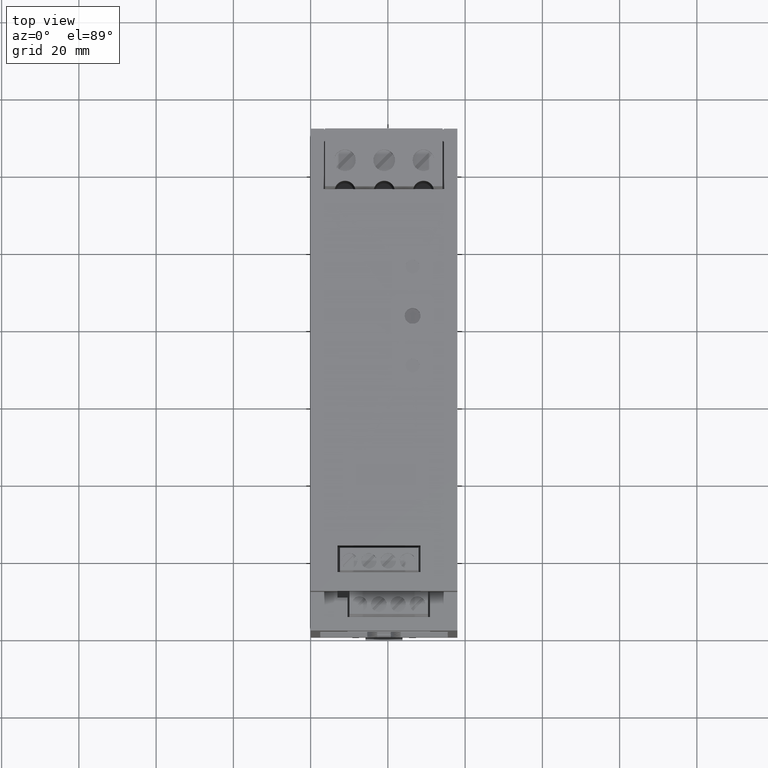
[diagram: clean part render]
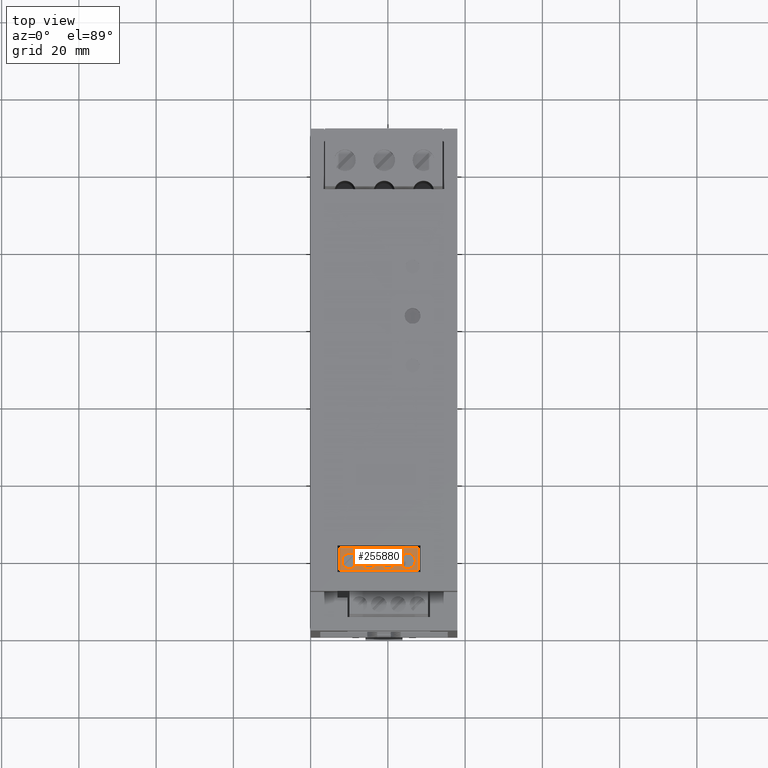
[diagram: same view with one face highlighted and labeled with its STEP entity id]
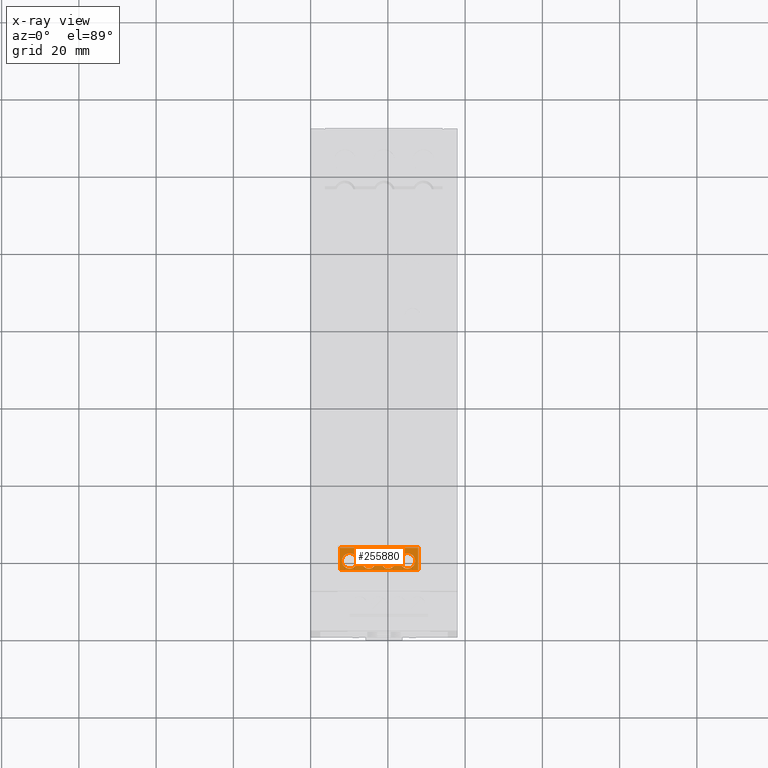
[diagram: x-ray of the same camera — body ghosted, the highlighted face saturated]
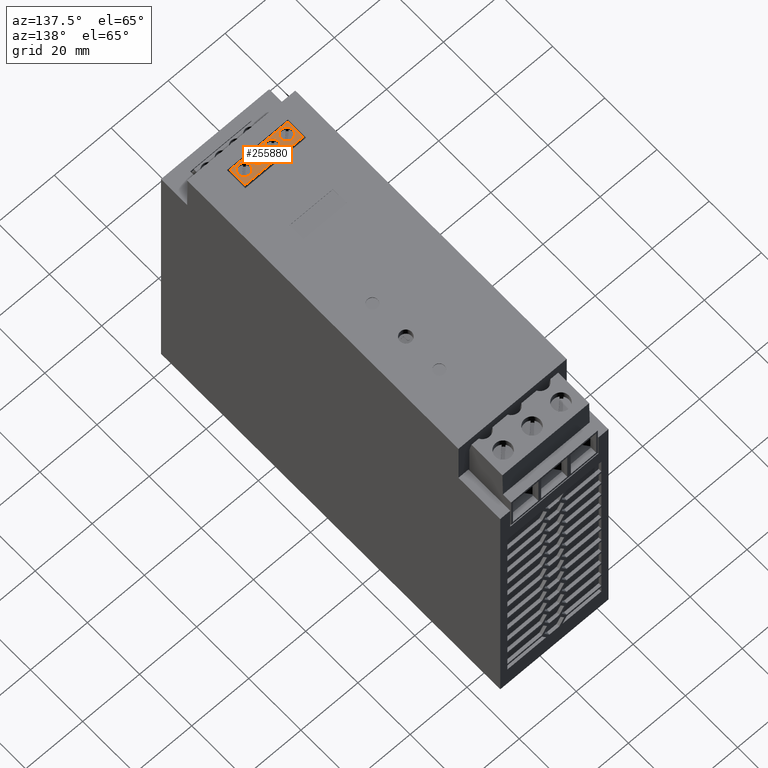
[diagram: same view with one face highlighted and labeled with its STEP entity id]
A machine part, top view. The second image highlights one B-rep face of the part: STEP entity #255880.
The next image is the same camera in x-ray: the body ghosted, the highlighted face saturated — about 0% of this face is hidden behind the body in this view.
A second angle (auxiliary view) of the same face is appended — the face is thin or edge-on in the first view.
In plain terms, the highlighted planar face has unit normal (-0, 0, 1).
Its self-contained STEP definition (entity closure, byte-faithful):
#234450=CARTESIAN_POINT('',(21.0898566145489,122.199985521229,
111.344533873885));
#234460=VERTEX_POINT('',#234450);
#234860=CARTESIAN_POINT('',(17.0898566149269,122.199985521228,
111.344588861166));
#234870=VERTEX_POINT('',#234860);
#234900=CARTESIAN_POINT('',(19.0898566147379,122.199985521228,
111.344561367526));
#234910=DIRECTION('',(-2.57815653320528E-20,-1.,-3.46944695195361E-18));
#234920=DIRECTION('',(0.999999999905512,-2.57338714660515E-20,
-1.37468202355246E-5));
#234930=AXIS2_PLACEMENT_3D('',#234900,#234910,#234920);
#234940=CIRCLE('',#234930,1.99999999999997);
#234950=EDGE_CURVE('',#234870,#234460,#234940,.T.);
#247180=CARTESIAN_POINT('',(6.54988960829135,122.199985521229,
113.744733752425));
#247190=VERTEX_POINT('',#247180);
#247670=CARTESIAN_POINT('',(6.54980964108919,122.199985521229,
107.927591985858));
#247680=VERTEX_POINT('',#247670);
#247710=CARTESIAN_POINT('',(6.549716831829,122.199985521228,
101.176266327476));
#247720=DIRECTION('',(-1.37468202355246E-5,3.46944730604034E-18,
-0.999999999905512));
#247730=VECTOR('',#247720,1.);
#247740=LINE('',#247710,#247730);
#247750=EDGE_CURVE('',#247190,#247680,#247740,.T.);
#255080=CARTESIAN_POINT('',(6.04186136793511,122.199985521228,
113.890199520389));
#255090=DIRECTION('',(2.57815653320528E-20,1.,3.46944695195361E-18));
#255100=DIRECTION('',(0.999999999905512,-2.57338714660515E-20,
-1.37468202355246E-5));
#255110=AXIS2_PLACEMENT_3D('',#255080,#255090,#255100);
#255120=PLANE('',#255110);
#255130=ORIENTED_EDGE('',*,*,#247750,.F.);
#255140=CARTESIAN_POINT('',(2.74980964144815,122.199985521228,
107.927644223775));
#255150=DIRECTION('',(-0.999999999905512,2.57338714660515E-20,
1.37468202355246E-5));
#255160=VECTOR('',#255150,1.);
#255170=LINE('',#255140,#255160);
#255180=CARTESIAN_POINT('',(26.8698096391692,122.199985521228,
107.92731265047));
#255190=VERTEX_POINT('',#255180);
#255200=EDGE_CURVE('',#255190,#247680,#255170,.T.);
#255210=ORIENTED_EDGE('',*,*,#255200,.T.);
#255220=CARTESIAN_POINT('',(26.869716829909,122.199985521228,
101.175986992089));
#255230=DIRECTION('',(-1.37468202355246E-5,3.46944730604034E-18,
-0.999999999905512));
#255240=VECTOR('',#255230,1.);
#255250=LINE('',#255220,#255240);
#255260=CARTESIAN_POINT('',(26.8698896063714,122.199985521228,
113.744454417038));
#255270=VERTEX_POINT('',#255260);
#255280=EDGE_CURVE('',#255270,#255190,#255250,.T.);
#255290=ORIENTED_EDGE('',*,*,#255280,.T.);
#255300=CARTESIAN_POINT('',(2.74988960865031,122.199985521228,
113.744785990342));
#255310=DIRECTION('',(0.999999999905512,-2.57338714660515E-20,
-1.37468202355246E-5));
#255320=VECTOR('',#255310,1.);
#255330=LINE('',#255300,#255320);
#255340=EDGE_CURVE('',#247190,#255270,#255330,.T.);
#255350=ORIENTED_EDGE('',*,*,#255340,.T.);
#255360=EDGE_LOOP('',(#255350,#255290,#255210,#255130));
#255370=FACE_OUTER_BOUND('',#255360,.T.);
#255380=EDGE_CURVE('',#234460,#234870,#234940,.T.);
#255390=ORIENTED_EDGE('',*,*,#255380,.T.);
#255400=ORIENTED_EDGE('',*,*,#234950,.T.);
#255410=EDGE_LOOP('',(#255400,#255390));
#255420=FACE_BOUND('',#255410,.T.);
#255430=CARTESIAN_POINT('',(9.08985661568278,122.199985521228,
111.344698835728));
#255440=DIRECTION('',(-2.57815653320528E-20,-1.,-3.46944695195361E-18));
#255450=DIRECTION('',(0.999999999905512,-2.57338714660515E-20,
-1.37468202355246E-5));
#255460=AXIS2_PLACEMENT_3D('',#255430,#255440,#255450);
#255470=CIRCLE('',#255460,1.99999999999999);
#255480=CARTESIAN_POINT('',(11.0898566154938,122.199985521228,
111.344671342088));
#255490=VERTEX_POINT('',#255480);
#255500=CARTESIAN_POINT('',(7.08985661587177,122.199985521228,
111.344726329369));
#255510=VERTEX_POINT('',#255500);
#255520=EDGE_CURVE('',#255490,#255510,#255470,.T.);
#255530=ORIENTED_EDGE('',*,*,#255520,.T.);
#255540=EDGE_CURVE('',#255510,#255490,#255470,.T.);
#255550=ORIENTED_EDGE('',*,*,#255540,.T.);
#255560=EDGE_LOOP('',(#255550,#255530));
#255570=FACE_BOUND('',#255560,.T.);
#255580=CARTESIAN_POINT('',(24.0898566142655,122.199985521228,
111.344492633424));
#255590=DIRECTION('',(-2.57815653320528E-20,-1.,-3.46944695195361E-18));
#255600=DIRECTION('',(0.999999999905512,-2.57338714660515E-20,
-1.37468202355246E-5));
#255610=AXIS2_PLACEMENT_3D('',#255580,#255590,#255600);
#255620=CIRCLE('',#255610,1.99999999999999);
#255630=CARTESIAN_POINT('',(22.0898566144545,122.199985521228,
111.344520127065));
#255640=VERTEX_POINT('',#255630);
#255650=CARTESIAN_POINT('',(26.0898566140765,122.199985521228,
111.344465139784));
#255660=VERTEX_POINT('',#255650);
#255670=EDGE_CURVE('',#255640,#255660,#255620,.T.);
#255680=ORIENTED_EDGE('',*,*,#255670,.T.);
#255690=EDGE_CURVE('',#255660,#255640,#255620,.T.);
#255700=ORIENTED_EDGE('',*,*,#255690,.T.);
#255710=EDGE_LOOP('',(#255700,#255680));
#255720=FACE_BOUND('',#255710,.T.);
#255730=CARTESIAN_POINT('',(14.0898566152103,122.199985521228,
111.344630101627));
#255740=DIRECTION('',(-2.57815653320528E-20,-1.,-3.46944695195361E-18));
#255750=DIRECTION('',(0.999999999905512,-2.57338714660515E-20,
-1.37468202355246E-5));
#255760=AXIS2_PLACEMENT_3D('',#255730,#255740,#255750);
#255770=CIRCLE('',#255760,2.00000000000003);
#255780=CARTESIAN_POINT('',(16.0898566150214,122.199985521228,
111.344602607986));
#255790=VERTEX_POINT('',#255780);
#255800=CARTESIAN_POINT('',(12.0898566153993,122.199985521228,
111.344657595267));
#255810=VERTEX_POINT('',#255800);
#255820=EDGE_CURVE('',#255790,#255810,#255770,.T.);
#255830=ORIENTED_EDGE('',*,*,#255820,.T.);
#255840=EDGE_CURVE('',#255810,#255790,#255770,.T.);
#255850=ORIENTED_EDGE('',*,*,#255840,.T.);
#255860=EDGE_LOOP('',(#255850,#255830));
#255870=FACE_BOUND('',#255860,.T.);
#255880=ADVANCED_FACE('',(#255370,#255420,#255570,#255720,#255870),
#255120,.T.);